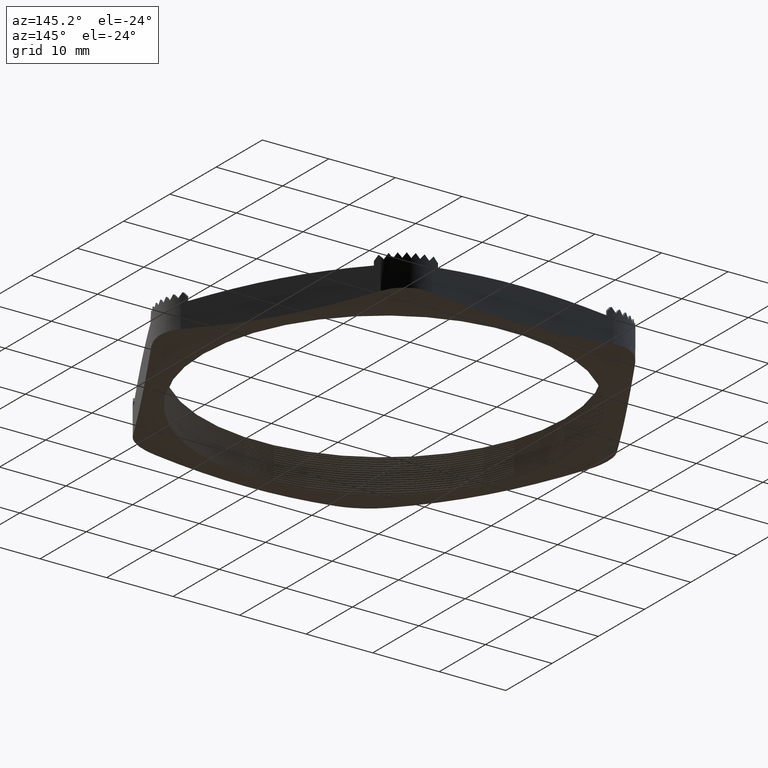
[diagram: clean part render]
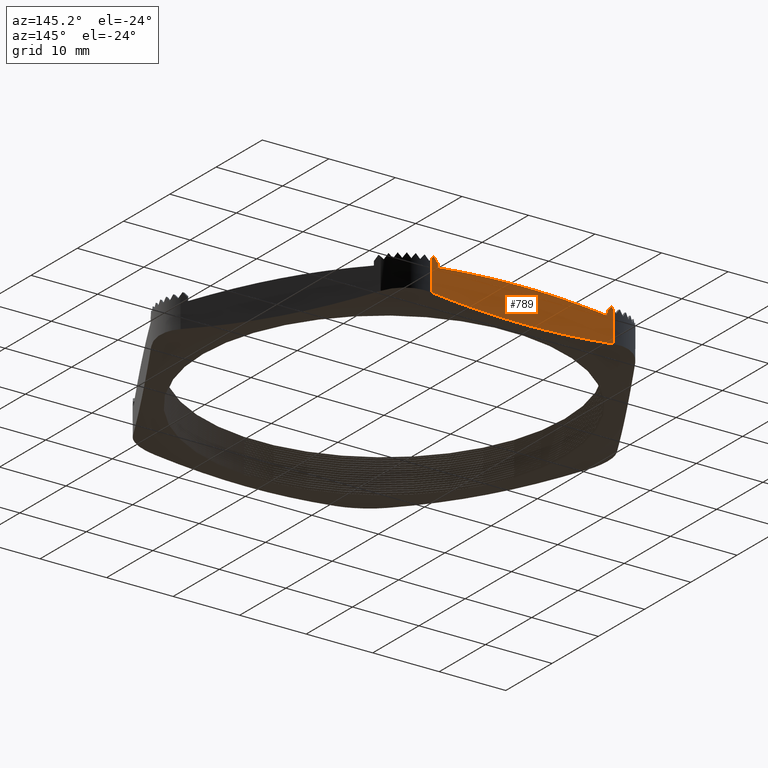
[diagram: same view with one face highlighted and labeled with its STEP entity id]
A machine part, auxiliary view. The second image highlights one B-rep face of the part: STEP entity #789.
In plain terms, the highlighted planar face has unit normal (-0, -1, 0).
Its self-contained STEP definition (entity closure, byte-faithful):
#784 = EDGE_CURVE ( 'NONE', #872, #845, #4199, .T. ) ;
#789 = ADVANCED_FACE ( 'NONE', ( #4244 ), #4243, .F. ) ;
#790 = EDGE_LOOP ( 'NONE', ( #791, #795, #798, #861, #864, #867, #870, #873, #846, #849, #852, #855 ) ) ;
#791 = ORIENTED_EDGE ( 'NONE', *, *, #792, .T. ) ;
#792 = EDGE_CURVE ( 'NONE', #793, #794, #4238, .T. ) ;
#793 = VERTEX_POINT ( 'NONE', #4234 ) ;
#794 = VERTEX_POINT ( 'NONE', #4233 ) ;
#795 = ORIENTED_EDGE ( 'NONE', *, *, #796, .T. ) ;
#796 = EDGE_CURVE ( 'NONE', #794, #797, #4232, .T. ) ;
#797 = VERTEX_POINT ( 'NONE', #4228 ) ;
#798 = ORIENTED_EDGE ( 'NONE', *, *, #799, .T. ) ;
#799 = EDGE_CURVE ( 'NONE', #797, #860, #4283, .T. ) ;
#845 = VERTEX_POINT ( 'NONE', #4364 ) ;
#846 = ORIENTED_EDGE ( 'NONE', *, *, #847, .F. ) ;
#847 = EDGE_CURVE ( 'NONE', #848, #845, #4363, .T. ) ;
#848 = VERTEX_POINT ( 'NONE', #4359 ) ;
#849 = ORIENTED_EDGE ( 'NONE', *, *, #850, .F. ) ;
#850 = EDGE_CURVE ( 'NONE', #851, #848, #4358, .T. ) ;
#851 = VERTEX_POINT ( 'NONE', #4357 ) ;
#852 = ORIENTED_EDGE ( 'NONE', *, *, #853, .F. ) ;
#853 = EDGE_CURVE ( 'NONE', #854, #851, #4350, .T. ) ;
#854 = VERTEX_POINT ( 'NONE', #4349 ) ;
#855 = ORIENTED_EDGE ( 'NONE', *, *, #856, .T. ) ;
#856 = EDGE_CURVE ( 'NONE', #854, #793, #4390, .T. ) ;
#860 = VERTEX_POINT ( 'NONE', #4379 ) ;
#861 = ORIENTED_EDGE ( 'NONE', *, *, #862, .F. ) ;
#862 = EDGE_CURVE ( 'NONE', #863, #860, #4378, .T. ) ;
#863 = VERTEX_POINT ( 'NONE', #4377 ) ;
#864 = ORIENTED_EDGE ( 'NONE', *, *, #865, .F. ) ;
#865 = EDGE_CURVE ( 'NONE', #866, #863, #4370, .T. ) ;
#866 = VERTEX_POINT ( 'NONE', #4369 ) ;
#867 = ORIENTED_EDGE ( 'NONE', *, *, #868, .T. ) ;
#868 = EDGE_CURVE ( 'NONE', #866, #869, #4413, .T. ) ;
#869 = VERTEX_POINT ( 'NONE', #4409 ) ;
#870 = ORIENTED_EDGE ( 'NONE', *, *, #871, .T. ) ;
#871 = EDGE_CURVE ( 'NONE', #869, #872, #4408, .T. ) ;
#872 = VERTEX_POINT ( 'NONE', #4404 ) ;
#873 = ORIENTED_EDGE ( 'NONE', *, *, #784, .T. ) ;
#4197 = VECTOR ( 'NONE', #4257, 39.37007874015748100 ) ;
#4198 = CARTESIAN_POINT ( 'NONE',  ( 0.002679712924891219900, 1.179999999999999900, -0.3863466944085413000 ) ) ;
#4199 = LINE ( 'NONE', #4198, #4197 ) ;
#4228 = CARTESIAN_POINT ( 'NONE',  ( 0.5369357503463522100, 1.179999999999999900, 0.2136363051197317000 ) ) ;
#4229 = DIRECTION ( 'NONE',  ( 0.6538041614099979700, -6.554247540379992500E-017, -0.7566638081228473900 ) ) ;
#4230 = VECTOR ( 'NONE', #4229, 39.37007874015748100 ) ;
#4231 = CARTESIAN_POINT ( 'NONE',  ( 0.6053802855327572500, 1.179999999999999900, 0.1344237431689880300 ) ) ;
#4232 = LINE ( 'NONE', #4231, #4230 ) ;
#4233 = CARTESIAN_POINT ( 'NONE',  ( 0.5263391621906782200, 1.179999999999999900, 0.2258999999999999600 ) ) ;
#4234 = CARTESIAN_POINT ( 'NONE',  ( 0.5009357503474862700, 1.180000000004271400, 0.1964999999980029900 ) ) ;
#4235 = DIRECTION ( 'NONE',  ( 0.6538041614099970900, -6.554247540379983900E-017, 0.7566638081228482800 ) ) ;
#4236 = VECTOR ( 'NONE', #4235, 39.37007874015748900 ) ;
#4237 = CARTESIAN_POINT ( 'NONE',  ( 0.5797543103020342800, 1.179999999999999900, 0.2877186786915220700 ) ) ;
#4238 = LINE ( 'NONE', #4237, #4236 ) ;
#4239 = DIRECTION ( 'NONE',  ( 1.000000000000000000, -1.002478712623220800E-016, 0.0000000000000000000 ) ) ;
#4240 = DIRECTION ( 'NONE',  ( -1.002478712623220800E-016, -1.000000000000000000, 0.0000000000000000000 ) ) ;
#4241 = CARTESIAN_POINT ( 'NONE',  ( 0.6812733176437588700, 1.179999999999999900, 0.2000000000000000100 ) ) ;
#4242 = AXIS2_PLACEMENT_3D ( 'NONE', #4241, #4240, #4239 ) ;
#4243 = PLANE ( 'NONE',  #4242 ) ;
#4244 = FACE_OUTER_BOUND ( 'NONE', #790, .T. ) ;
#4257 = DIRECTION ( 'NONE',  ( 0.6538041614100009700, -6.554247540380023300E-017, -0.7566638081228448400 ) ) ;
#4280 = DIRECTION ( 'NONE',  ( 0.0000000000000000000, 0.0000000000000000000, -1.000000000000000000 ) ) ;
#4281 = VECTOR ( 'NONE', #4280, 39.37007874015748100 ) ;
#4282 = CARTESIAN_POINT ( 'NONE',  ( 0.5369357503463522100, 1.179999999999999900, 0.2000000000000000100 ) ) ;
#4283 = LINE ( 'NONE', #4282, #4281 ) ;
#4349 = CARTESIAN_POINT ( 'NONE',  ( 0.5009357503463383000, 1.179999999999999900, 0.1726887643337009500 ) ) ;
#4350 = B_SPLINE_CURVE_WITH_KNOTS ( 'NONE', 3,
 ( #4396, #4395, #4394, #4393, #4392, #4391 ),
 .UNSPECIFIED., .F., .F.,
 ( 4, 2, 4 ),
 ( 0.06098658551660471300, 0.06738733326858399600, 0.07378808102056327900 ),
 .UNSPECIFIED. ) ;
#4351 = CARTESIAN_POINT ( 'NONE',  ( -0.5009357503463525200, 1.179999999999999900, 0.1726887643336994500 ) ) ;
#4352 = CARTESIAN_POINT ( 'NONE',  ( -0.4175252183663527600, 1.179999999999999900, 0.1814223403230033600 ) ) ;
#4353 = CARTESIAN_POINT ( 'NONE',  ( -0.3337692710902339700, 1.179999999999999500, 0.1883251366923660000 ) ) ;
#4354 = CARTESIAN_POINT ( 'NONE',  ( -0.1667276988926165400, 1.180000000000000200, 0.1976108090252001500 ) ) ;
#4355 = CARTESIAN_POINT ( 'NONE',  ( -0.08330948090468466600, 1.179999999999999700, 0.1999999999999999600 ) ) ;
#4356 = CARTESIAN_POINT ( 'NONE',  ( 1.182924880895400300E-016, 1.179999999999999900, 0.2000000000000000100 ) ) ;
#4357 = CARTESIAN_POINT ( 'NONE',  ( 1.182924880895400300E-016, 1.179999999999999900, 0.2000000000000000100 ) ) ;
#4358 = B_SPLINE_CURVE_WITH_KNOTS ( 'NONE', 3,
 ( #4356, #4355, #4354, #4353, #4352, #4351 ),
 .UNSPECIFIED., .F., .F.,
 ( 4, 2, 4 ),
 ( 0.07378808102056327900, 0.08015923449445369600, 0.08653038796834410000 ),
 .UNSPECIFIED. ) ;
#4359 = CARTESIAN_POINT ( 'NONE',  ( -0.5009357503463525200, 1.179999999999999900, 0.1726887643336994500 ) ) ;
#4360 = DIRECTION ( 'NONE',  ( 0.0000000000000000000, 0.0000000000000000000, 1.000000000000000000 ) ) ;
#4361 = VECTOR ( 'NONE', #4360, 39.37007874015748100 ) ;
#4362 = CARTESIAN_POINT ( 'NONE',  ( -0.5009357503463520700, 1.179999999999999700, -19685.03937007874300 ) ) ;
#4363 = LINE ( 'NONE', #4362, #4361 ) ;
#4364 = CARTESIAN_POINT ( 'NONE',  ( -0.5009357503455477100, 1.179999999997225700, 0.1965000000002409300 ) ) ;
#4369 = CARTESIAN_POINT ( 'NONE',  ( -0.5369357503463519900, 1.179999999999999900, 0.03119414724621189000 ) ) ;
#4370 = B_SPLINE_CURVE_WITH_KNOTS ( 'NONE', 3,
 ( #4419, #4418, #4417, #4416, #4415, #4414 ),
 .UNSPECIFIED., .F., .F.,
 ( 4, 2, 4 ),
 ( 0.02914167191824299000, 0.03597858856402470800, 0.04281550520980643300 ),
 .UNSPECIFIED. ) ;
#4371 = CARTESIAN_POINT ( 'NONE',  ( 0.5369357503463522100, 1.179999999999999900, 0.03119414724621193500 ) ) ;
#4372 = CARTESIAN_POINT ( 'NONE',  ( 0.4476607464946411000, 1.179999999999999900, 0.02128675058289444500 ) ) ;
#4373 = CARTESIAN_POINT ( 'NONE',  ( 0.3582925990376474900, 1.179999999999999900, 0.01342592215973377300 ) ) ;
#4374 = CARTESIAN_POINT ( 'NONE',  ( 0.1793255401098800500, 1.180000000000000200, 0.002774654205318962900 ) ) ;
#4375 = CARTESIAN_POINT ( 'NONE',  ( 0.08972591021587489300, 1.179999999999999900, -8.963876229210866500E-017 ) ) ;
#4376 = CARTESIAN_POINT ( 'NONE',  ( 1.182924880895400500E-016, 1.179999999999999900, 0.0000000000000000000 ) ) ;
#4377 = CARTESIAN_POINT ( 'NONE',  ( 1.182924880895400500E-016, 1.179999999999999900, 0.0000000000000000000 ) ) ;
#4378 = B_SPLINE_CURVE_WITH_KNOTS ( 'NONE', 3,
 ( #4376, #4375, #4374, #4373, #4372, #4371 ),
 .UNSPECIFIED., .F., .F.,
 ( 4, 2, 4 ),
 ( 0.04281550520980643300, 0.04968461849885798900, 0.05655373178790953900 ),
 .UNSPECIFIED. ) ;
#4379 = CARTESIAN_POINT ( 'NONE',  ( 0.5369357503463522100, 1.179999999999999900, 0.03119414724621193500 ) ) ;
#4387 = DIRECTION ( 'NONE',  ( 0.0000000000000000000, 0.0000000000000000000, 1.000000000000000000 ) ) ;
#4388 = VECTOR ( 'NONE', #4387, 39.37007874015748100 ) ;
#4389 = CARTESIAN_POINT ( 'NONE',  ( 0.5009357503463381900, 1.180000000000005900, -19685.03937007874300 ) ) ;
#4390 = LINE ( 'NONE', #4389, #4388 ) ;
#4391 = CARTESIAN_POINT ( 'NONE',  ( 1.182924880895400300E-016, 1.179999999999999900, 0.2000000000000000100 ) ) ;
#4392 = CARTESIAN_POINT ( 'NONE',  ( 0.08369645697666870700, 1.179999999999999900, 0.2000000000000000100 ) ) ;
#4393 = CARTESIAN_POINT ( 'NONE',  ( 0.1672831897505968900, 1.179999999999999900, 0.1975891198561094400 ) ) ;
#4394 = CARTESIAN_POINT ( 'NONE',  ( 0.3342528361619026000, 1.179999999999999900, 0.1882890084207881300 ) ) ;
#4395 = CARTESIAN_POINT ( 'NONE',  ( 0.4176362476003746000, 1.179999999999999700, 0.1814107149055726500 ) ) ;
#4396 = CARTESIAN_POINT ( 'NONE',  ( 0.5009357503463383000, 1.179999999999999900, 0.1726887643337009500 ) ) ;
#4404 = CARTESIAN_POINT ( 'NONE',  ( -0.5263391621906927700, 1.179999999999999900, 0.2259000000000001000 ) ) ;
#4405 = DIRECTION ( 'NONE',  ( 0.6885821507129942200, -6.902889479820910800E-017, 0.7251583425152518000 ) ) ;
#4406 = VECTOR ( 'NONE', #4405, 39.37007874015748100 ) ;
#4407 = CARTESIAN_POINT ( 'NONE',  ( 0.03331203861730286400, 1.179999999999999900, 0.8152788224751004200 ) ) ;
#4408 = LINE ( 'NONE', #4407, #4406 ) ;
#4409 = CARTESIAN_POINT ( 'NONE',  ( -0.5369357503463519900, 1.179999999999999900, 0.2147405409647666100 ) ) ;
#4410 = DIRECTION ( 'NONE',  ( 0.0000000000000000000, 0.0000000000000000000, 1.000000000000000000 ) ) ;
#4411 = VECTOR ( 'NONE', #4410, 39.37007874015748100 ) ;
#4412 = CARTESIAN_POINT ( 'NONE',  ( -0.5369357503463519900, 1.179999999999999900, 0.2000000000000000100 ) ) ;
#4413 = LINE ( 'NONE', #4412, #4411 ) ;
#4414 = CARTESIAN_POINT ( 'NONE',  ( 1.182924880895400500E-016, 1.179999999999999900, 0.0000000000000000000 ) ) ;
#4415 = CARTESIAN_POINT ( 'NONE',  ( -0.08930535038497382200, 1.179999999999999900, -9.284014665968394800E-017 ) ) ;
#4416 = CARTESIAN_POINT ( 'NONE',  ( -0.1787358361923934700, 1.179999999999999900, 0.002749498266897405600 ) ) ;
#4417 = CARTESIAN_POINT ( 'NONE',  ( -0.3578307425906402900, 1.180000000000000200, 0.01338855241967577500 ) ) ;
#4418 = CARTESIAN_POINT ( 'NONE',  ( -0.4476151086129390700, 1.179999999999999700, 0.02128168586626177200 ) ) ;
#4419 = CARTESIAN_POINT ( 'NONE',  ( -0.5369357503463519900, 1.179999999999999900, 0.03119414724621189000 ) ) ;